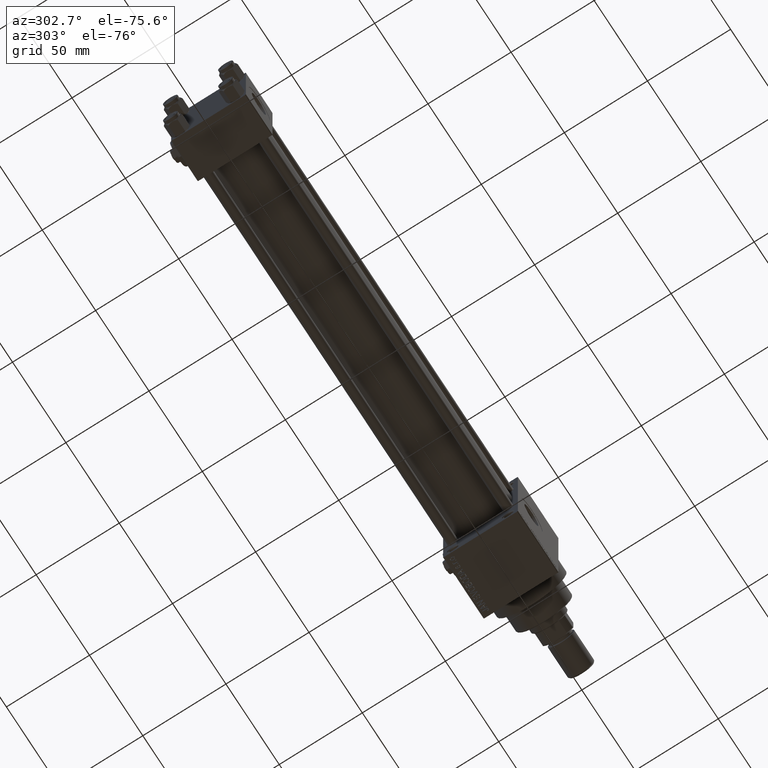
[diagram: clean part render]
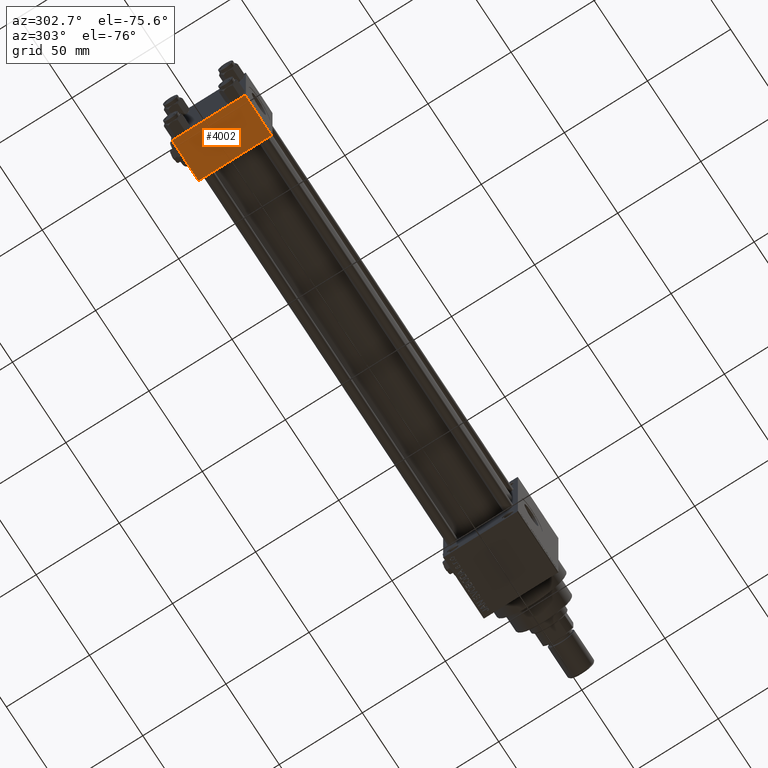
[diagram: same view with one face highlighted and labeled with its STEP entity id]
A machine part, auxiliary view. The second image highlights one B-rep face of the part: STEP entity #4002.
In plain terms, the highlighted planar face has unit normal (0, 0, -1).
Its self-contained STEP definition (entity closure, byte-faithful):
#332 = EDGE_CURVE ( 'NONE', #13106, #34193, #49413, .T. ) ;
#680 = EDGE_LOOP ( 'NONE', ( #12088, #12608, #24116, #36236 ) ) ;
#706 = FACE_OUTER_BOUND ( 'NONE', #680, .T. ) ;
#4002 = ADVANCED_FACE ( 'NONE', ( #706 ), #45809, .T. ) ;
#4210 = CARTESIAN_POINT ( 'NONE',  ( 25.00000000000000000, 22.50000000000000000, -22.49999999999999645 ) ) ;
#4293 = DIRECTION ( 'NONE',  ( 0.000000000000000000, -1.000000000000000000, -2.312964634635742957E-16 ) ) ;
#8328 = CARTESIAN_POINT ( 'NONE',  ( 25.00000000000000000, 21.99999999999999289, -22.49999999999999645 ) ) ;
#9019 = AXIS2_PLACEMENT_3D ( 'NONE', #4210, #38532, #42059 ) ;
#11058 = CARTESIAN_POINT ( 'NONE',  ( 0.000000000000000000, -21.99999999999997158, -22.50000000000000711 ) ) ;
#11731 = CARTESIAN_POINT ( 'NONE',  ( 0.000000000000000000, -21.99999999999998579, -22.50000000000000711 ) ) ;
#11792 = CARTESIAN_POINT ( 'NONE',  ( 25.00000000000000000, 21.99999999999999289, -22.49999999999999645 ) ) ;
#12088 = ORIENTED_EDGE ( 'NONE', *, *, #13368, .F. ) ;
#12482 = DIRECTION ( 'NONE',  ( -1.000000000000000000, 0.000000000000000000, 0.000000000000000000 ) ) ;
#12608 = ORIENTED_EDGE ( 'NONE', *, *, #12798, .T. ) ;
#12798 = EDGE_CURVE ( 'NONE', #27894, #13106, #16367, .T. ) ;
#13106 = VERTEX_POINT ( 'NONE', #11792 ) ;
#13368 = EDGE_CURVE ( 'NONE', #27894, #21050, #25793, .T. ) ;
#13530 = EDGE_CURVE ( 'NONE', #34193, #21050, #23022, .T. ) ;
#15084 = CARTESIAN_POINT ( 'NONE',  ( 25.00000000000000000, 22.50000000000000000, -22.49999999999999645 ) ) ;
#16367 = LINE ( 'NONE', #8328, #29190 ) ;
#21050 = VERTEX_POINT ( 'NONE', #11058 ) ;
#23022 = LINE ( 'NONE', #11731, #34776 ) ;
#24116 = ORIENTED_EDGE ( 'NONE', *, *, #332, .T. ) ;
#25793 = LINE ( 'NONE', #34275, #38784 ) ;
#27656 = CARTESIAN_POINT ( 'NONE',  ( 0.000000000000000000, 21.99999999999999289, -22.49999999999999645 ) ) ;
#27894 = VERTEX_POINT ( 'NONE', #27656 ) ;
#29190 = VECTOR ( 'NONE', #31646, 1000.000000000000000 ) ;
#31646 = DIRECTION ( 'NONE',  ( 1.000000000000000000, 0.000000000000000000, 0.000000000000000000 ) ) ;
#34039 = DIRECTION ( 'NONE',  ( 0.000000000000000000, -1.000000000000000000, -2.312964634635742957E-16 ) ) ;
#34193 = VERTEX_POINT ( 'NONE', #38340 ) ;
#34275 = CARTESIAN_POINT ( 'NONE',  ( 0.000000000000000000, 22.50000000000000000, -22.49999999999999645 ) ) ;
#34776 = VECTOR ( 'NONE', #12482, 1000.000000000000000 ) ;
#36236 = ORIENTED_EDGE ( 'NONE', *, *, #13530, .T. ) ;
#38340 = CARTESIAN_POINT ( 'NONE',  ( 25.00000000000000000, -21.99999999999997158, -22.50000000000000711 ) ) ;
#38532 = DIRECTION ( 'NONE',  ( 0.000000000000000000, 2.312964634635742957E-16, -1.000000000000000000 ) ) ;
#38784 = VECTOR ( 'NONE', #34039, 1000.000000000000000 ) ;
#42059 = DIRECTION ( 'NONE',  ( 0.000000000000000000, 1.000000000000000000, 2.312964634635742957E-16 ) ) ;
#45809 = PLANE ( 'NONE',  #9019 ) ;
#45830 = VECTOR ( 'NONE', #4293, 1000.000000000000000 ) ;
#49413 = LINE ( 'NONE', #15084, #45830 ) ;